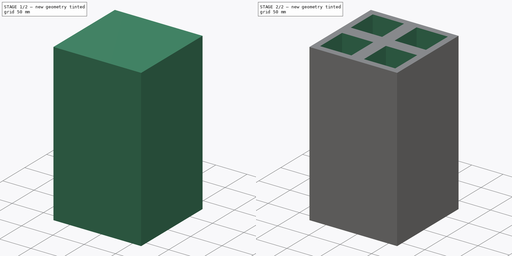
[diagram: build sequence overview — one tinted view per stage of 2, left to right]
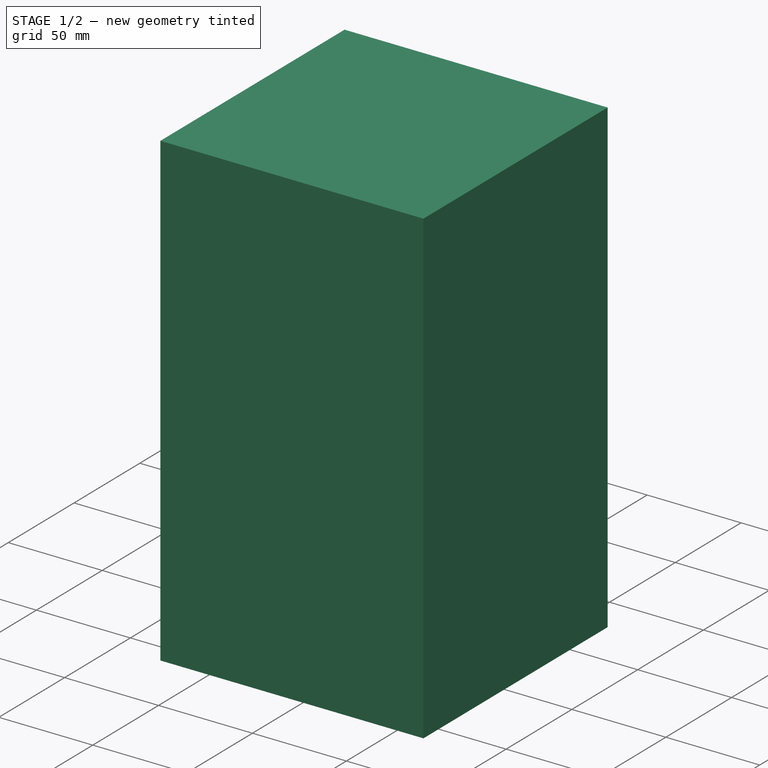
[diagram: stage 1 of 2 — iso view after this stage's code; geometry added in this stage tinted green]
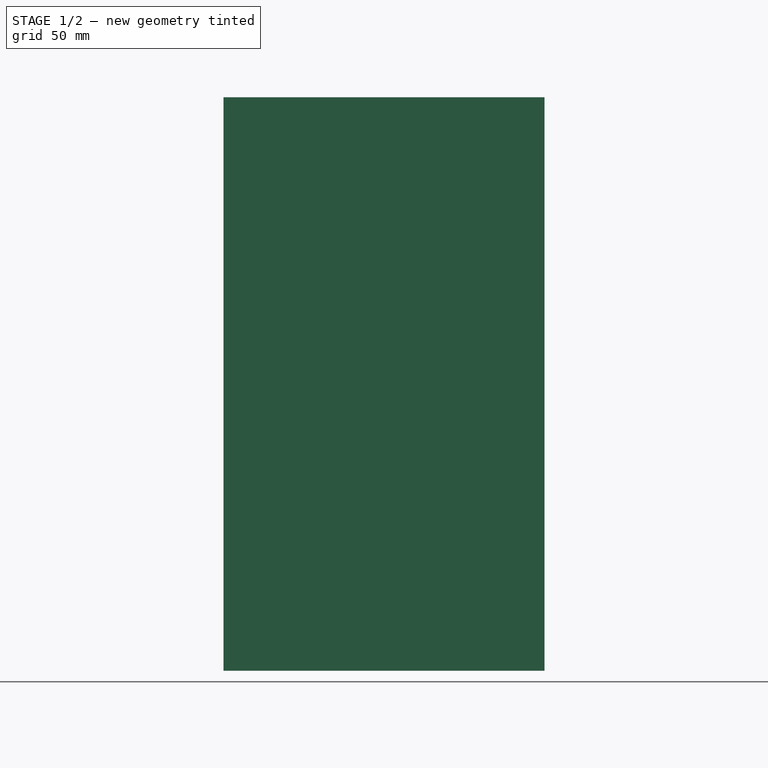
[diagram: stage 1 of 2 — front view after this stage's code; geometry added in this stage tinted green]
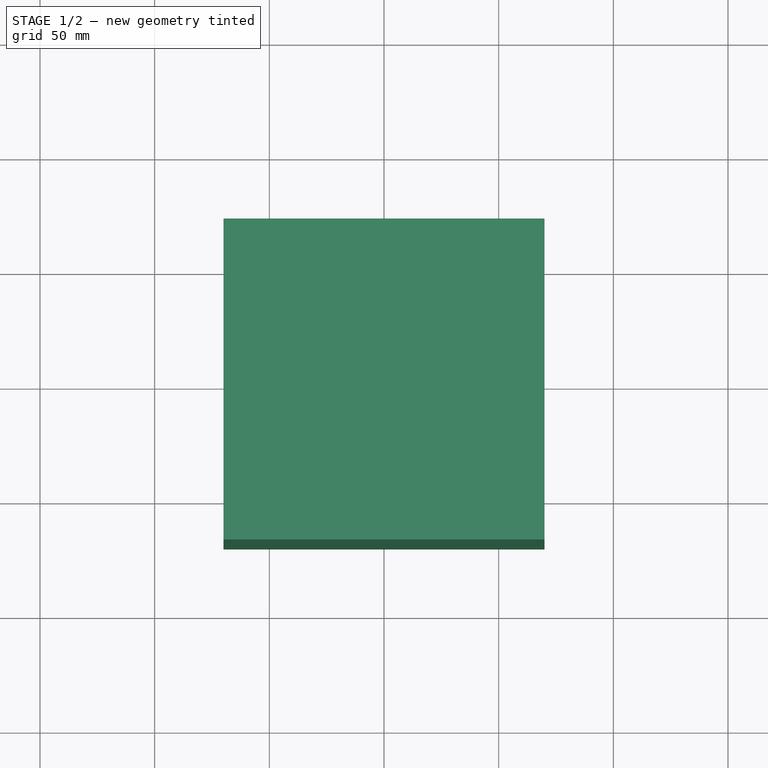
[diagram: stage 1 of 2 — top view after this stage's code; geometry added in this stage tinted green]
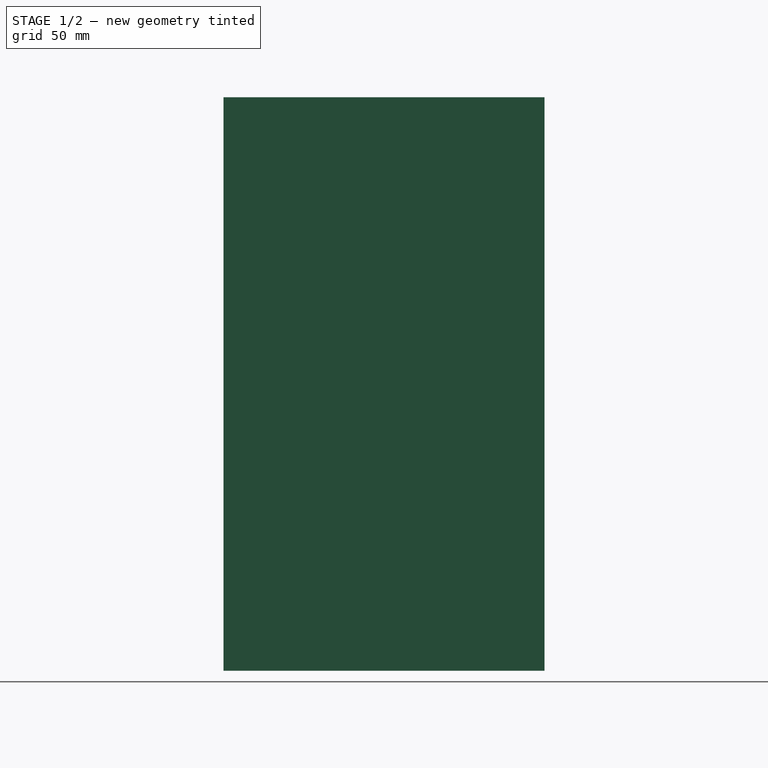
[diagram: stage 1 of 2 — right view after this stage's code; geometry added in this stage tinted green]
FCSTD DOCUMENT  (FreeCAD 0.16R6707 (Git))
Label: Ladrillo
License: CreativeCommons Attribution-ShareAlike
LicenseURL: http://creativecommons.org/licenses/by-sa/4.0/
objects: Sketcher::SketchObject×2, PartDesign::Pad×1, PartDesign::Pocket×1
note: 6 computed .brp shape members not serialized (recipe doc carries the construction recipe); baked Part::Feature solids carry a one-line shape summary decoded from their .brp

FEATURE [Sketcher::SketchObject] Sketch  label="BCT_Base"
  sketch-geometry (4):
    g0: LineSegment StartX=-70 StartY=70 StartZ=0 EndX=70 EndY=70 EndZ=0
    g1: LineSegment StartX=70 StartY=70 StartZ=0 EndX=70 EndY=-70 EndZ=0
    g2: LineSegment StartX=70 StartY=-70 StartZ=0 EndX=-70 EndY=-70 EndZ=0
    g3: LineSegment StartX=-70 StartY=-70 StartZ=0 EndX=-70 EndY=70 EndZ=0
  constraints (12):
    c: Coincident(g0,g1)
    c: Coincident(g1,g2)
    c: Coincident(g2,g3)
    c: Coincident(g3,g0)
    c: Horizontal(g0)
    c: Horizontal(g2)
    c: Vertical(g1)
    c: Vertical(g3)
    c: Symmetric(g0,g0,g-2)
    c: Symmetric(g0,g1,g-1)
    c: Equal(g0,g1)
    c: DistanceX(g0,g0) = 140
FEATURE [PartDesign::Pad] Pad  label="Base_Ladrillo"
  Length = 250
  Length2 = 100
  Sketch = -> Sketch
  Type = 0
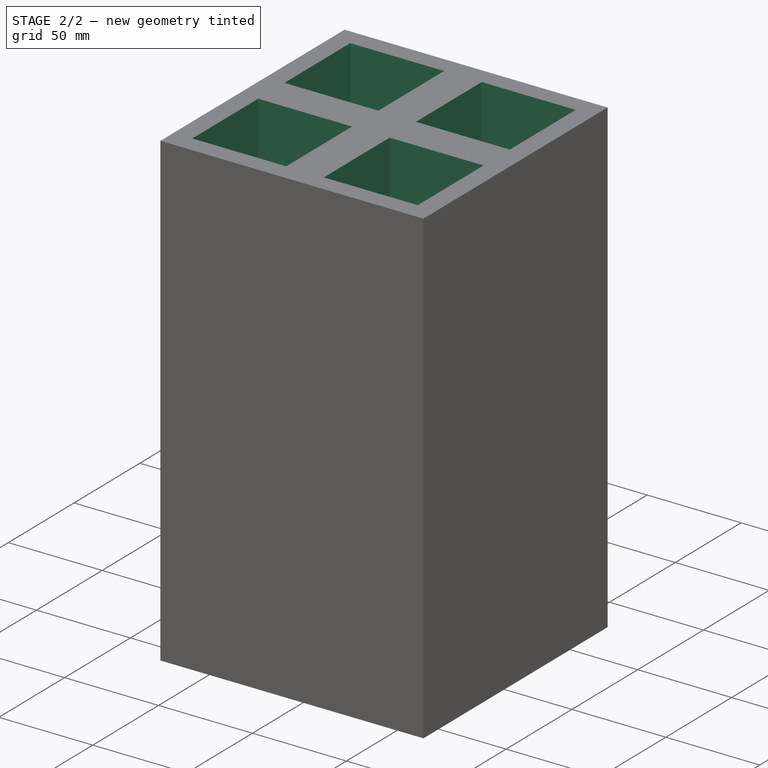
[diagram: stage 2 of 2 — iso view after this stage's code; geometry added in this stage tinted green]
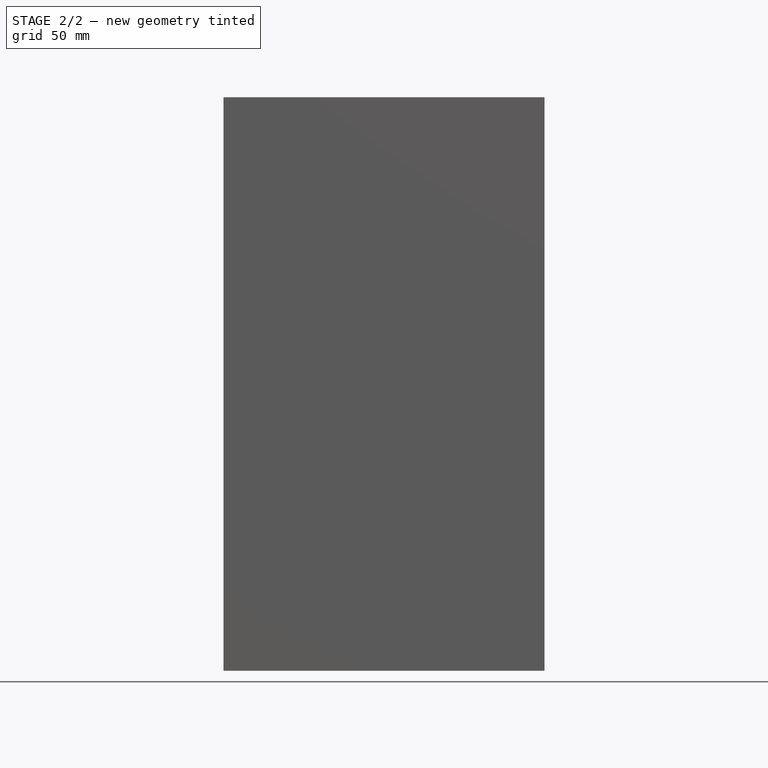
[diagram: stage 2 of 2 — front view after this stage's code; geometry added in this stage tinted green]
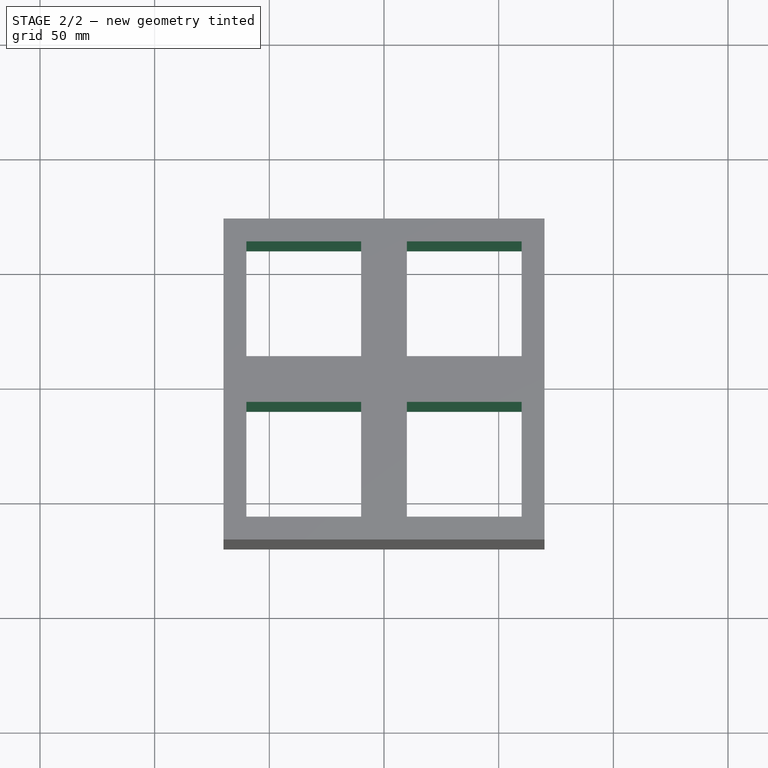
[diagram: stage 2 of 2 — top view after this stage's code; geometry added in this stage tinted green]
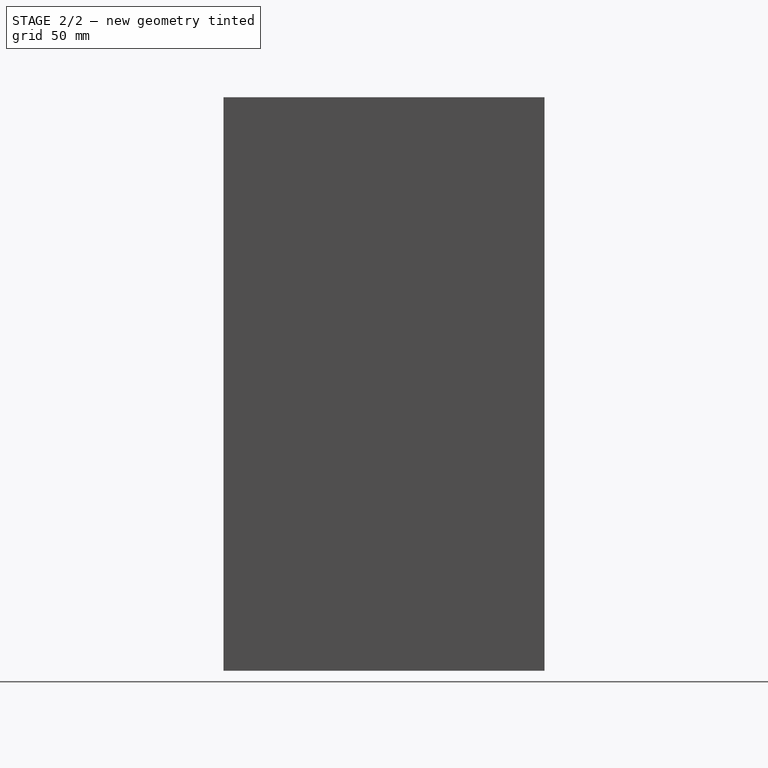
[diagram: stage 2 of 2 — right view after this stage's code; geometry added in this stage tinted green]
FEATURE [Sketcher::SketchObject] Sketch001  label="BCT_Vaciado"
  Placement = pos=(0,0,250) rot=(0,0,1;0rad)
  Support = -> Pad [Face6]
  sketch-geometry (16):
    g0: LineSegment StartX=-60 StartY=60 StartZ=0 EndX=-10 EndY=60 EndZ=0
    g1: LineSegment StartX=-10 StartY=60 StartZ=0 EndX=-10 EndY=10 EndZ=0
    g2: LineSegment StartX=-10 StartY=10 StartZ=0 EndX=-60 EndY=10 EndZ=0
    g3: LineSegment StartX=-60 StartY=10 StartZ=0 EndX=-60 EndY=60 EndZ=0
    g4: LineSegment StartX=10 StartY=60 StartZ=0 EndX=60 EndY=60 EndZ=0
    g5: LineSegment StartX=60 StartY=60 StartZ=0 EndX=60 EndY=10 EndZ=0
    g6: LineSegment StartX=60 StartY=10 StartZ=0 EndX=10 EndY=10 EndZ=0
    g7: LineSegment StartX=10 StartY=10 StartZ=0 EndX=10 EndY=60 EndZ=0
    g8: LineSegment StartX=-60 StartY=-10 StartZ=0 EndX=-10 EndY=-10 EndZ=0
    g9: LineSegment StartX=-10 StartY=-10 StartZ=0 EndX=-10 EndY=-60 EndZ=0
    g10: LineSegment StartX=-10 StartY=-60 StartZ=0 EndX=-60 EndY=-60 EndZ=0
    g11: LineSegment StartX=-60 StartY=-60 StartZ=0 EndX=-60 EndY=-10 EndZ=0
    g12: LineSegment StartX=10 StartY=-10 StartZ=0 EndX=60 EndY=-10 EndZ=0
    g13: LineSegment StartX=60 StartY=-10 StartZ=0 EndX=60 EndY=-60 EndZ=0
    g14: LineSegment StartX=60 StartY=-60 StartZ=0 EndX=10 EndY=-60 EndZ=0
    g15: LineSegment StartX=10 StartY=-60 StartZ=0 EndX=10 EndY=-10 EndZ=0
  constraints (45):
    c: Coincident(g0,g1)
    c: Coincident(g1,g2)
    c: Coincident(g2,g3)
    c: Coincident(g3,g0)
    c: Horizontal(g0)
    c: Horizontal(g2)
    c: Vertical(g1)
    c: Vertical(g3)
    c: Coincident(g4,g5)
    c: Coincident(g5,g6)
    c: Coincident(g6,g7)
    c: Coincident(g7,g4)
    c: Horizontal(g4)
    c: Horizontal(g6)
    c: Vertical(g5)
    c: Vertical(g7)
    c: Coincident(g8,g9)
    c: Coincident(g9,g10)
    c: Coincident(g10,g11)
    c: Coincident(g11,g8)
    c: Horizontal(g8)
    c: Horizontal(g10)
    c: Vertical(g9)
    c: Vertical(g11)
    c: Coincident(g12,g13)
    c: Coincident(g13,g14)
    c: Coincident(g14,g15)
    c: Coincident(g15,g12)
    c: Horizontal(g12)
    c: Horizontal(g14)
    c: Vertical(g13)
    c: Vertical(g15)
    c: Equal(g3,g0)
    c: Equal(g0,g11)
    c: Equal(g11,g8)
    c: Equal(g8,g15)
    c: Equal(g15,g12)
    c: Equal(g12,g7)
    c: Equal(g7,g4)
    c: DistanceX(g0,g0) = 50
    c: Symmetric(g0,g4,g-2)
    c: Symmetric(g1,g8,g-1)
    c: Symmetric(g12,g6,g-1)
    c: DistanceX(g0,g-1) = 60
    c: DistanceY(g-1,g0) = 60
FEATURE [PartDesign::Pocket] Pocket  label="Ladrillo_con_agujeros"
  Length = 5
  Sketch = -> Sketch001
  Type = 1
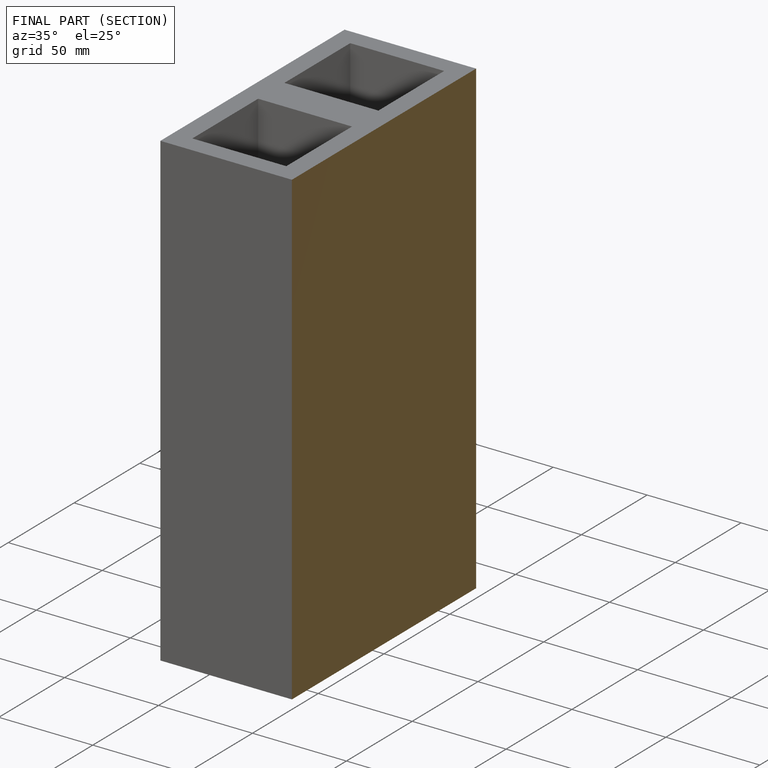
[diagram: finished part — half-section view (interior)]
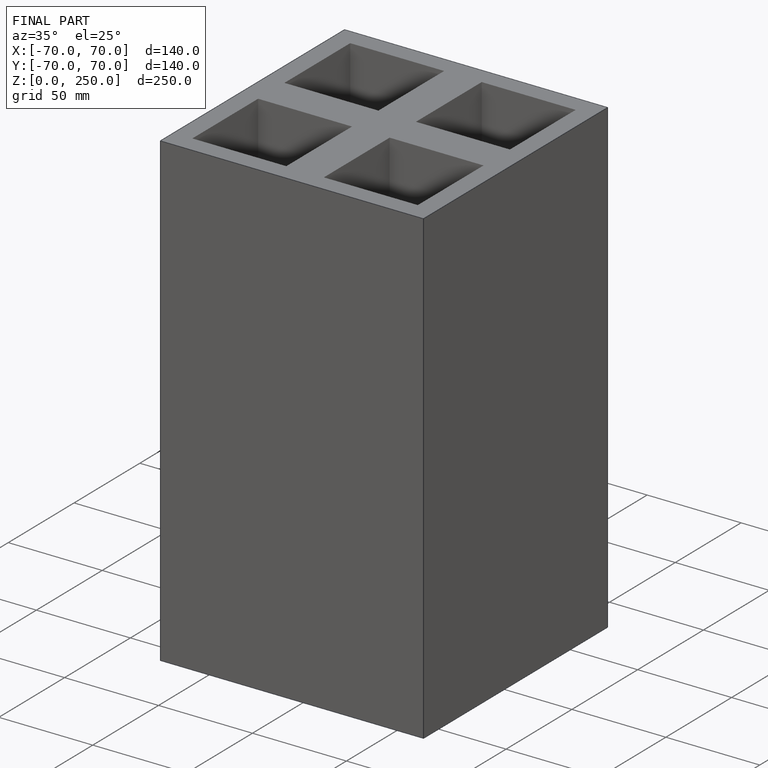
[diagram: finished part — iso view with bounding-box wireframe]
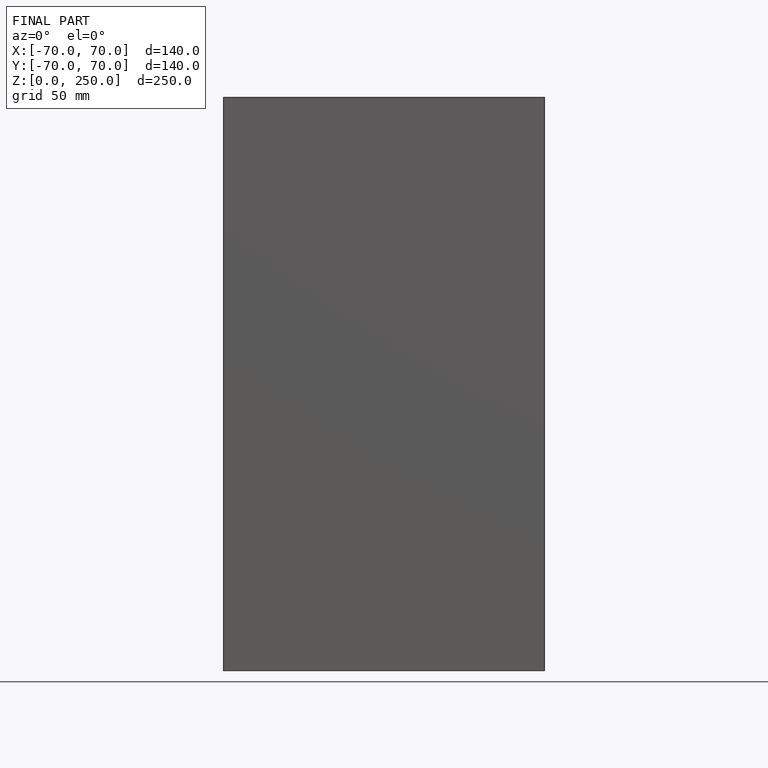
[diagram: finished part — front view with bounding-box wireframe]
